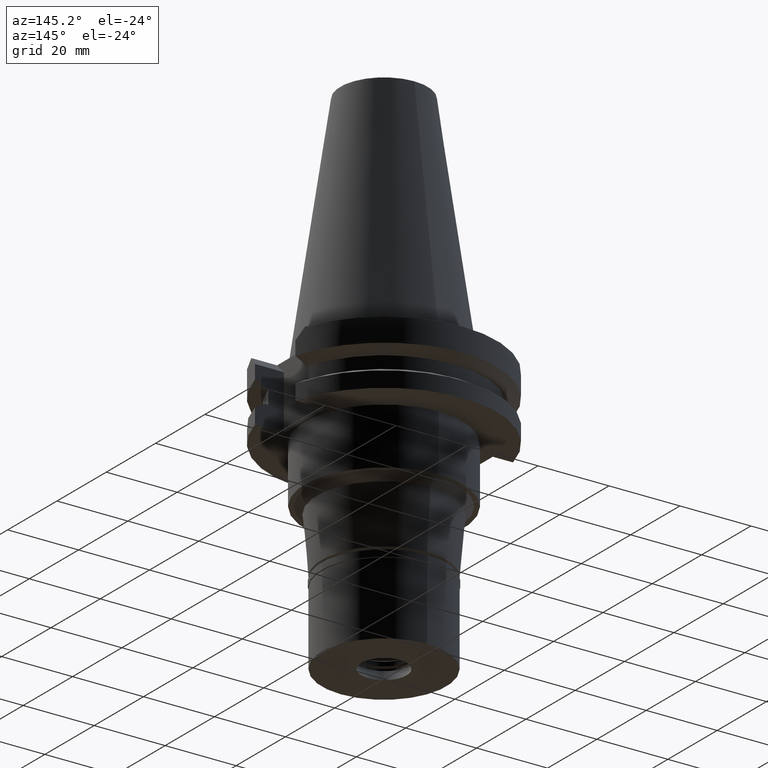
[diagram: clean part render]
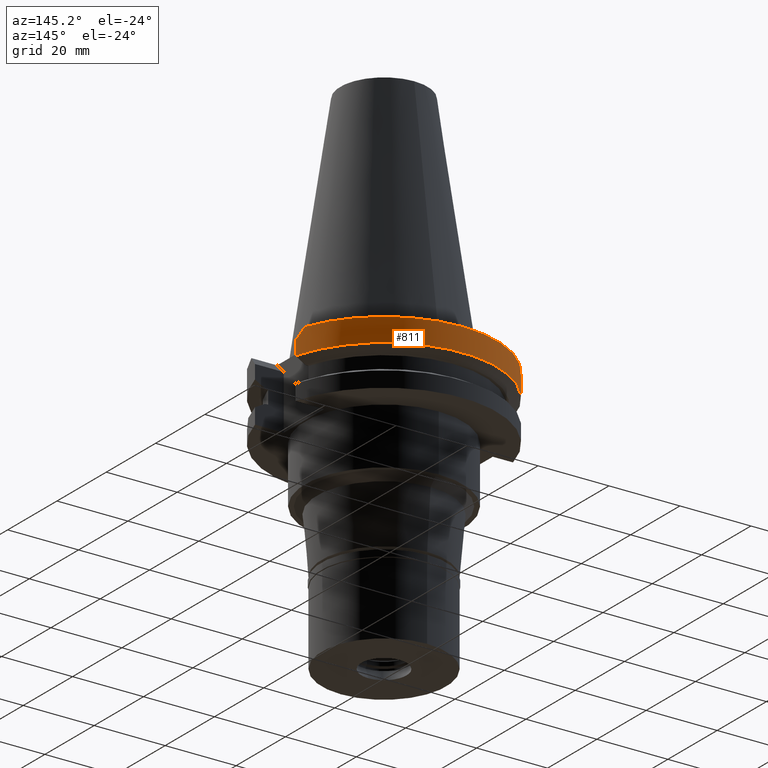
[diagram: same view with one face highlighted and labeled with its STEP entity id]
A machine part, auxiliary view. The second image highlights one B-rep face of the part: STEP entity #811.
In plain terms, the highlighted cylindrical surface (partial cylindrical patch) has radius 31.75 mm, axis along (0, 0, -1).
Its self-contained STEP definition (entity closure, byte-faithful):
#15 = DIRECTION ( 'NONE',  ( 4.111594057357945416E-08, 1.539995335299980468E-07, -0.9999999999999872324 ) ) ;
#16 = EDGE_CURVE ( 'NONE', #690, #3021, #932, .T. ) ;
#63 = DIRECTION ( 'NONE',  ( 0.0000000000000000000, -1.000000000000000000, 0.0000000000000000000 ) ) ;
#177 = CARTESIAN_POINT ( 'NONE',  ( 30.14799306409551960, 10.00266721625513888, -1.887332783744861242 ) ) ;
#257 = AXIS2_PLACEMENT_3D ( 'NONE', #3296, #1479, #1737 ) ;
#280 = B_SPLINE_CURVE_WITH_KNOTS ( 'NONE', 3,
 ( #2275, #1939, #177, #371 ),
 .UNSPECIFIED., .F., .F.,
 ( 4, 4 ),
 ( 0.0000000000000000000, 1.000000000000000000 ),
 .UNSPECIFIED. ) ;
#316 = EDGE_CURVE ( 'NONE', #1018, #2897, #1992, .T. ) ;
#327 = CARTESIAN_POINT ( 'NONE',  ( 0.0000000000000000000, 2.144815787856999694E-14, 75.13750000000000284 ) ) ;
#330 = ORIENTED_EDGE ( 'NONE', *, *, #2109, .F. ) ;
#340 = CARTESIAN_POINT ( 'NONE',  ( 30.67550165931999828, 8.189999874802001756, -7.608164476769999851 ) ) ;
#371 = CARTESIAN_POINT ( 'NONE',  ( 29.82399034335000110, 10.89000000000000057, -1.000000000001000089 ) ) ;
#690 = VERTEX_POINT ( 'NONE', #340 ) ;
#695 = CARTESIAN_POINT ( 'NONE',  ( -30.67550146519999998, 8.190000601855000895, -7.608157979396000137 ) ) ;
#707 = CARTESIAN_POINT ( 'NONE',  ( -30.67550162588999640, 8.189999999999999503, -3.700000000000000178 ) ) ;
#708 = ORIENTED_EDGE ( 'NONE', *, *, #16, .T. ) ;
#800 = CARTESIAN_POINT ( 'NONE',  ( -29.82399034335000110, 10.89000000000000057, -0.9999999999999000799 ) ) ;
#811 = ADVANCED_FACE ( 'NONE', ( #2901 ), #2423, .T. ) ;
#932 = CIRCLE ( 'NONE', #987, 31.74999999999998579 ) ;
#934 = AXIS2_PLACEMENT_3D ( 'NONE', #327, #2621, #63 ) ;
#987 = AXIS2_PLACEMENT_3D ( 'NONE', #3158, #1381, #2441 ) ;
#1016 = LINE ( 'NONE', #1827, #1948 ) ;
#1018 = VERTEX_POINT ( 'NONE', #800 ) ;
#1244 = EDGE_LOOP ( 'NONE', ( #708, #330, #3048, #2250, #2272, #2508 ) ) ;
#1381 = DIRECTION ( 'NONE',  ( 0.0000000000000000000, 0.0000000000000000000, 1.000000000000000000 ) ) ;
#1398 = VECTOR ( 'NONE', #15, 1000.000000000000227 ) ;
#1414 = EDGE_CURVE ( 'NONE', #3222, #1618, #280, .T. ) ;
#1479 = DIRECTION ( 'NONE',  ( 0.0000000000000000000, 0.0000000000000000000, -1.000000000000000000 ) ) ;
#1618 = VERTEX_POINT ( 'NONE', #1822 ) ;
#1680 = CIRCLE ( 'NONE', #257, 31.75000000000000000 ) ;
#1737 = DIRECTION ( 'NONE',  ( 0.0000000000000000000, 1.000000000000000000, 0.0000000000000000000 ) ) ;
#1822 = CARTESIAN_POINT ( 'NONE',  ( 29.82399034335000110, 10.89000000000000057, -1.000000000001000089 ) ) ;
#1827 = CARTESIAN_POINT ( 'NONE',  ( 30.67550165931999828, 8.189999874802001756, -7.608164476769999851 ) ) ;
#1939 = CARTESIAN_POINT ( 'NONE',  ( 30.43183015827552040, 9.102667216255303728, -2.787332783744695064 ) ) ;
#1948 = VECTOR ( 'NONE', #2620, 1000.000000000000114 ) ;
#1992 = B_SPLINE_CURVE_WITH_KNOTS ( 'NONE', 3,
 ( #2473, #3036, #2782, #707 ),
 .UNSPECIFIED., .F., .F.,
 ( 4, 4 ),
 ( 0.0000000000000000000, 1.000000000000000000 ),
 .UNSPECIFIED. ) ;
#2109 = EDGE_CURVE ( 'NONE', #2897, #3021, #3339, .T. ) ;
#2111 = CARTESIAN_POINT ( 'NONE',  ( 30.67550162588999640, 8.189999999999999503, -3.700000000000000178 ) ) ;
#2221 = CARTESIAN_POINT ( 'NONE',  ( -30.67550162588999640, 8.189999999999999503, -3.700000000000000178 ) ) ;
#2250 = ORIENTED_EDGE ( 'NONE', *, *, #3282, .T. ) ;
#2272 = ORIENTED_EDGE ( 'NONE', *, *, #1414, .F. ) ;
#2275 = CARTESIAN_POINT ( 'NONE',  ( 30.67550162588999640, 8.189999999999999503, -3.700000000000000178 ) ) ;
#2378 = CARTESIAN_POINT ( 'NONE',  ( -30.67550162588999640, 8.189999999999999503, -3.700000000000000178 ) ) ;
#2423 = CYLINDRICAL_SURFACE ( 'NONE', #934, 31.75000000000000000 ) ;
#2441 = DIRECTION ( 'NONE',  ( 0.9661575315241073270, 0.2579527559055020958, 0.0000000000000000000 ) ) ;
#2473 = CARTESIAN_POINT ( 'NONE',  ( -29.82399034335000110, 10.89000000000000057, -0.9999999999999000799 ) ) ;
#2508 = ORIENTED_EDGE ( 'NONE', *, *, #2612, .F. ) ;
#2612 = EDGE_CURVE ( 'NONE', #690, #3222, #1016, .T. ) ;
#2620 = DIRECTION ( 'NONE',  ( -8.553109113215987659E-09, 3.203500597222998239E-08, 0.9999999999999994449 ) ) ;
#2621 = DIRECTION ( 'NONE',  ( 0.0000000000000000000, 0.0000000000000000000, -1.000000000000000000 ) ) ;
#2782 = CARTESIAN_POINT ( 'NONE',  ( -30.43183015827551330, 9.102667216255303728, -2.787332783744695064 ) ) ;
#2897 = VERTEX_POINT ( 'NONE', #2221 ) ;
#2901 = FACE_OUTER_BOUND ( 'NONE', #1244, .T. ) ;
#3021 = VERTEX_POINT ( 'NONE', #695 ) ;
#3036 = CARTESIAN_POINT ( 'NONE',  ( -30.14799306409551249, 10.00266721625513888, -1.887332783744861242 ) ) ;
#3048 = ORIENTED_EDGE ( 'NONE', *, *, #316, .F. ) ;
#3158 = CARTESIAN_POINT ( 'NONE',  ( 0.0000000000000000000, 1.121665249527999917E-14, -7.608163357944999206 ) ) ;
#3222 = VERTEX_POINT ( 'NONE', #2111 ) ;
#3282 = EDGE_CURVE ( 'NONE', #1018, #1618, #1680, .T. ) ;
#3296 = CARTESIAN_POINT ( 'NONE',  ( 0.0000000000000000000, 2.144815787856999694E-14, -0.9999999999999000799 ) ) ;
#3339 = LINE ( 'NONE', #2378, #1398 ) ;